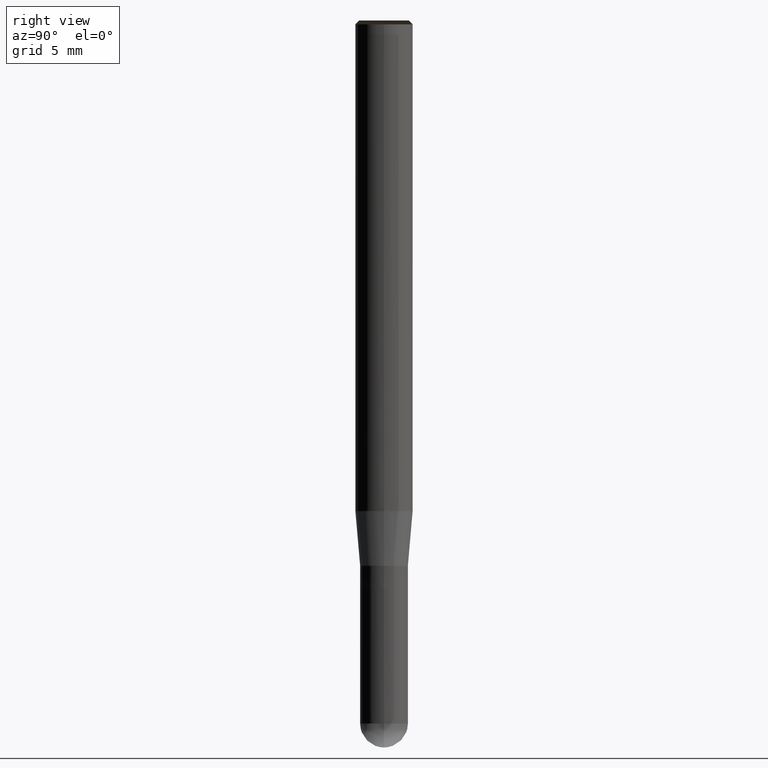
[diagram: clean part render]
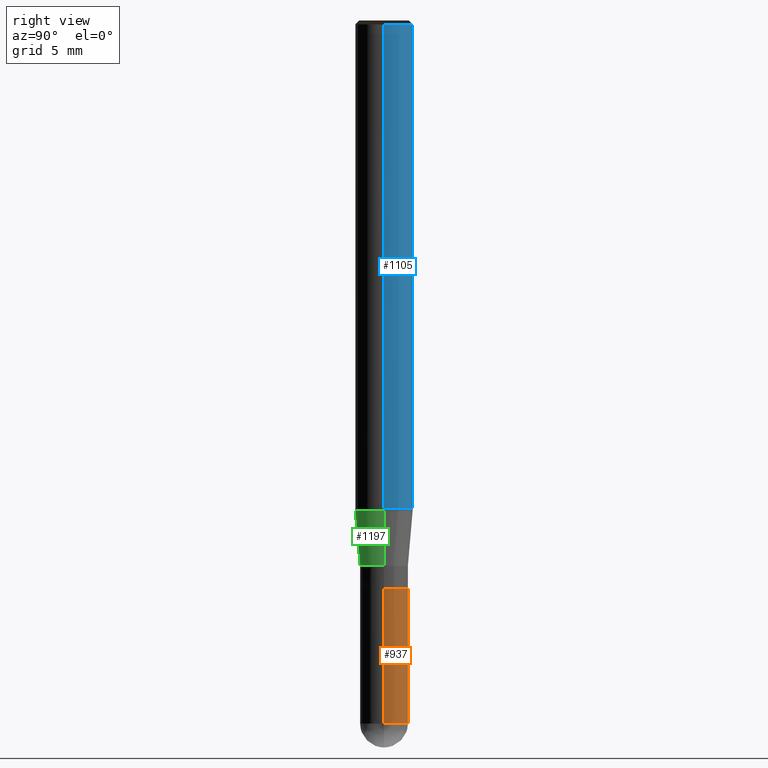
[diagram: same view with three faces highlighted in distinct colors, each labeled with its STEP entity id]
A machine part, right view with three faces highlighted in distinct colors.
Their STEP definitions:

[orange] entity #937 — the highlighted face is a freeform B-spline surface patch.
#834=CARTESIAN_POINT('',(1.25,0.0,-11.25));
#835=CARTESIAN_POINT('',(1.25,1.25,-11.25));
#836=CARTESIAN_POINT('',(0.0,1.25,-11.25));
#837=CARTESIAN_POINT('',(-1.25,1.25,-11.25));
#838=CARTESIAN_POINT('',(-1.25,0.0,-11.25));
#839=CARTESIAN_POINT('',(1.25,0.0,-4.1875));
#840=CARTESIAN_POINT('',(1.25,1.25,-4.1875));
#841=CARTESIAN_POINT('',(0.0,1.25,-4.1875));
#842=CARTESIAN_POINT('',(-1.25,1.25,-4.1875));
#843=CARTESIAN_POINT('',(-1.25,0.0,-4.1875));
#918=(
BOUNDED_SURFACE()
B_SPLINE_SURFACE(1,2,(
(#834,#835,#836,#837,#838),
(#839,#840,#841,#842,#843)
), .UNSPECIFIED.,.F.,.F.,.F.)
B_SPLINE_SURFACE_WITH_KNOTS((2,2),(3,2,3),(
0.0,1.0),(
0.0,0.5,1.0), .UNSPECIFIED.)
GEOMETRIC_REPRESENTATION_ITEM()
RATIONAL_B_SPLINE_SURFACE(((1.0,0.707106781187,1.0,0.707106781187,1.0),
(1.0,0.707106781187,1.0,0.707106781187,1.0)
))
REPRESENTATION_ITEM('')
SURFACE()
);
#919=(
BOUNDED_CURVE()
B_SPLINE_CURVE(2,(#838,#837,#836,#835,#834),.UNSPECIFIED.,.F.,.F.)
B_SPLINE_CURVE_WITH_KNOTS((3,2,3),
(0.0,0.5,1.0),.UNSPECIFIED.)
CURVE()
GEOMETRIC_REPRESENTATION_ITEM()
RATIONAL_B_SPLINE_CURVE((1.0,0.707106781187,1.0,0.707106781187,1.0))
REPRESENTATION_ITEM('')
);
#920=(
BOUNDED_CURVE()
B_SPLINE_CURVE(1,(#834,#839),.UNSPECIFIED.,.F.,.F.)
B_SPLINE_CURVE_WITH_KNOTS((2,2),
(0.0,1.0),.UNSPECIFIED.)
CURVE()
GEOMETRIC_REPRESENTATION_ITEM()
RATIONAL_B_SPLINE_CURVE((1.0,1.0))
REPRESENTATION_ITEM('')
);
#921=(
BOUNDED_CURVE()
B_SPLINE_CURVE(2,(#839,#840,#841,#842,#843),.UNSPECIFIED.,.F.,.F.)
B_SPLINE_CURVE_WITH_KNOTS((3,2,3),
(0.0,0.5,1.0),.UNSPECIFIED.)
CURVE()
GEOMETRIC_REPRESENTATION_ITEM()
RATIONAL_B_SPLINE_CURVE((1.0,0.707106781187,1.0,0.707106781187,1.0))
REPRESENTATION_ITEM('')
);
#922=(
BOUNDED_CURVE()
B_SPLINE_CURVE(1,(#843,#838),.UNSPECIFIED.,.F.,.F.)
B_SPLINE_CURVE_WITH_KNOTS((2,2),
(0.0,1.0),.UNSPECIFIED.)
CURVE()
GEOMETRIC_REPRESENTATION_ITEM()
RATIONAL_B_SPLINE_CURVE((1.0,1.0))
REPRESENTATION_ITEM('')
);
#923=VERTEX_POINT('',#834);
#924=VERTEX_POINT('',#838);
#925=VERTEX_POINT('',#839);
#926=VERTEX_POINT('',#843);
#927=EDGE_CURVE('',#924,#923,#919,.T.);
#928=EDGE_CURVE('',#923,#925,#920,.T.);
#929=EDGE_CURVE('',#925,#926,#921,.T.);
#930=EDGE_CURVE('',#926,#924,#922,.T.);
#931=ORIENTED_EDGE('',*,*,#927,.T.);
#932=ORIENTED_EDGE('',*,*,#928,.T.);
#933=ORIENTED_EDGE('',*,*,#929,.T.);
#934=ORIENTED_EDGE('',*,*,#930,.T.);
#935=EDGE_LOOP('',(#931,#932,#933,#934));
#936=FACE_OUTER_BOUND('',#935,.T.);
#937=ADVANCED_FACE('',(#936),#918,.T.);

[blue] entity #1105 — the highlighted face is a freeform B-spline surface patch.
#864=CARTESIAN_POINT('',(1.5,0.0,0.0));
#865=CARTESIAN_POINT('',(1.5,1.5,0.0));
#866=CARTESIAN_POINT('',(0.0,1.5,0.0));
#867=CARTESIAN_POINT('',(-1.5,1.5,0.0));
#868=CARTESIAN_POINT('',(-1.5,0.0,0.0));
#869=CARTESIAN_POINT('',(1.5,0.0,25.3));
#870=CARTESIAN_POINT('',(1.5,1.5,25.3));
#871=CARTESIAN_POINT('',(0.0,1.5,25.3));
#872=CARTESIAN_POINT('',(-1.5,1.5,25.3));
#873=CARTESIAN_POINT('',(-1.5,0.0,25.3));
#1086=(
BOUNDED_SURFACE()
B_SPLINE_SURFACE(1,2,(
(#864,#865,#866,#867,#868),
(#869,#870,#871,#872,#873)
), .UNSPECIFIED.,.F.,.F.,.F.)
B_SPLINE_SURFACE_WITH_KNOTS((2,2),(3,2,3),(
0.0,1.0),(
0.0,0.5,1.0), .UNSPECIFIED.)
GEOMETRIC_REPRESENTATION_ITEM()
RATIONAL_B_SPLINE_SURFACE(((1.0,0.707106781187,1.0,0.707106781187,1.0),
(1.0,0.707106781187,1.0,0.707106781187,1.0)
))
REPRESENTATION_ITEM('')
SURFACE()
);
#1087=(
BOUNDED_CURVE()
B_SPLINE_CURVE(2,(#868,#867,#866,#865,#864),.UNSPECIFIED.,.F.,.F.)
B_SPLINE_CURVE_WITH_KNOTS((3,2,3),
(0.0,0.5,1.0),.UNSPECIFIED.)
CURVE()
GEOMETRIC_REPRESENTATION_ITEM()
RATIONAL_B_SPLINE_CURVE((1.0,0.707106781187,1.0,0.707106781187,1.0))
REPRESENTATION_ITEM('')
);
#1088=(
BOUNDED_CURVE()
B_SPLINE_CURVE(1,(#864,#869),.UNSPECIFIED.,.F.,.F.)
B_SPLINE_CURVE_WITH_KNOTS((2,2),
(0.0,1.0),.UNSPECIFIED.)
CURVE()
GEOMETRIC_REPRESENTATION_ITEM()
RATIONAL_B_SPLINE_CURVE((1.0,1.0))
REPRESENTATION_ITEM('')
);
#1089=(
BOUNDED_CURVE()
B_SPLINE_CURVE(2,(#869,#870,#871,#872,#873),.UNSPECIFIED.,.F.,.F.)
B_SPLINE_CURVE_WITH_KNOTS((3,2,3),
(0.0,0.5,1.0),.UNSPECIFIED.)
CURVE()
GEOMETRIC_REPRESENTATION_ITEM()
RATIONAL_B_SPLINE_CURVE((1.0,0.707106781187,1.0,0.707106781187,1.0))
REPRESENTATION_ITEM('')
);
#1090=(
BOUNDED_CURVE()
B_SPLINE_CURVE(1,(#873,#868),.UNSPECIFIED.,.F.,.F.)
B_SPLINE_CURVE_WITH_KNOTS((2,2),
(0.0,1.0),.UNSPECIFIED.)
CURVE()
GEOMETRIC_REPRESENTATION_ITEM()
RATIONAL_B_SPLINE_CURVE((1.0,1.0))
REPRESENTATION_ITEM('')
);
#1091=VERTEX_POINT('',#864);
#1092=VERTEX_POINT('',#868);
#1093=VERTEX_POINT('',#869);
#1094=VERTEX_POINT('',#873);
#1095=EDGE_CURVE('',#1092,#1091,#1087,.T.);
#1096=EDGE_CURVE('',#1091,#1093,#1088,.T.);
#1097=EDGE_CURVE('',#1093,#1094,#1089,.T.);
#1098=EDGE_CURVE('',#1094,#1092,#1090,.T.);
#1099=ORIENTED_EDGE('',*,*,#1095,.T.);
#1100=ORIENTED_EDGE('',*,*,#1096,.T.);
#1101=ORIENTED_EDGE('',*,*,#1097,.T.);
#1102=ORIENTED_EDGE('',*,*,#1098,.T.);
#1103=EDGE_LOOP('',(#1099,#1100,#1101,#1102));
#1104=FACE_OUTER_BOUND('',#1103,.T.);
#1105=ADVANCED_FACE('',(#1104),#1086,.T.);

[green] entity #1197 — the highlighted face is a freeform B-spline surface patch.
#854=CARTESIAN_POINT('',(1.25,0.0,-3.0));
#858=CARTESIAN_POINT('',(-1.25,0.0,-3.0));
#859=CARTESIAN_POINT('',(1.5,0.0,-0.14248692431));
#863=CARTESIAN_POINT('',(-1.5,0.0,-0.14248692431));
#880=CARTESIAN_POINT('',(-1.25,-1.25,-3.0));
#881=CARTESIAN_POINT('',(0.0,-1.25,-3.0));
#882=CARTESIAN_POINT('',(1.25,-1.25,-3.0));
#883=CARTESIAN_POINT('',(-1.5,-1.5,-0.14248692431));
#884=CARTESIAN_POINT('',(0.0,-1.5,-0.14248692431));
#885=CARTESIAN_POINT('',(1.5,-1.5,-0.14248692431));
#1178=(
BOUNDED_SURFACE()
B_SPLINE_SURFACE(1,2,(
(#858,#880,#881,#882,#854),
(#863,#883,#884,#885,#859)
), .UNSPECIFIED.,.F.,.F.,.F.)
B_SPLINE_SURFACE_WITH_KNOTS((2,2),(3,2,3),(
0.0,1.0),(
0.0,0.5,1.0), .UNSPECIFIED.)
GEOMETRIC_REPRESENTATION_ITEM()
RATIONAL_B_SPLINE_SURFACE(((1.0,0.707106781187,1.0,0.707106781187,1.0),
(1.0,0.707106781187,1.0,0.707106781187,1.0)
))
REPRESENTATION_ITEM('')
SURFACE()
);
#1179=(
BOUNDED_CURVE()
B_SPLINE_CURVE(2,(#854,#882,#881,#880,#858),.UNSPECIFIED.,.F.,.F.)
B_SPLINE_CURVE_WITH_KNOTS((3,2,3),
(0.0,0.5,1.0),.UNSPECIFIED.)
CURVE()
GEOMETRIC_REPRESENTATION_ITEM()
RATIONAL_B_SPLINE_CURVE((1.0,0.707106781187,1.0,0.707106781187,1.0))
REPRESENTATION_ITEM('')
);
#1180=(
BOUNDED_CURVE()
B_SPLINE_CURVE(1,(#858,#863),.UNSPECIFIED.,.F.,.F.)
B_SPLINE_CURVE_WITH_KNOTS((2,2),
(0.0,1.0),.UNSPECIFIED.)
CURVE()
GEOMETRIC_REPRESENTATION_ITEM()
RATIONAL_B_SPLINE_CURVE((1.0,1.0))
REPRESENTATION_ITEM('')
);
#1181=(
BOUNDED_CURVE()
B_SPLINE_CURVE(2,(#863,#883,#884,#885,#859),.UNSPECIFIED.,.F.,.F.)
B_SPLINE_CURVE_WITH_KNOTS((3,2,3),
(0.0,0.5,1.0),.UNSPECIFIED.)
CURVE()
GEOMETRIC_REPRESENTATION_ITEM()
RATIONAL_B_SPLINE_CURVE((1.0,0.707106781187,1.0,0.707106781187,1.0))
REPRESENTATION_ITEM('')
);
#1182=(
BOUNDED_CURVE()
B_SPLINE_CURVE(1,(#859,#854),.UNSPECIFIED.,.F.,.F.)
B_SPLINE_CURVE_WITH_KNOTS((2,2),
(0.0,1.0),.UNSPECIFIED.)
CURVE()
GEOMETRIC_REPRESENTATION_ITEM()
RATIONAL_B_SPLINE_CURVE((1.0,1.0))
REPRESENTATION_ITEM('')
);
#1183=VERTEX_POINT('',#854);
#1184=VERTEX_POINT('',#858);
#1185=VERTEX_POINT('',#859);
#1186=VERTEX_POINT('',#863);
#1187=EDGE_CURVE('',#1183,#1184,#1179,.T.);
#1188=EDGE_CURVE('',#1184,#1186,#1180,.T.);
#1189=EDGE_CURVE('',#1186,#1185,#1181,.T.);
#1190=EDGE_CURVE('',#1185,#1183,#1182,.T.);
#1191=ORIENTED_EDGE('',*,*,#1187,.T.);
#1192=ORIENTED_EDGE('',*,*,#1188,.T.);
#1193=ORIENTED_EDGE('',*,*,#1189,.T.);
#1194=ORIENTED_EDGE('',*,*,#1190,.T.);
#1195=EDGE_LOOP('',(#1191,#1192,#1193,#1194));
#1196=FACE_OUTER_BOUND('',#1195,.T.);
#1197=ADVANCED_FACE('',(#1196),#1178,.T.);